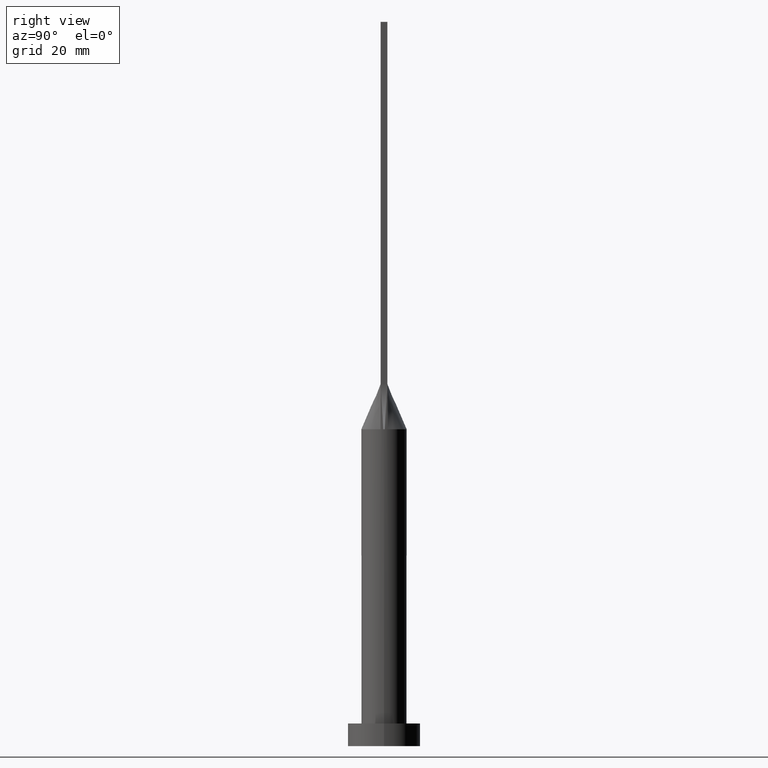
[diagram: clean part render]
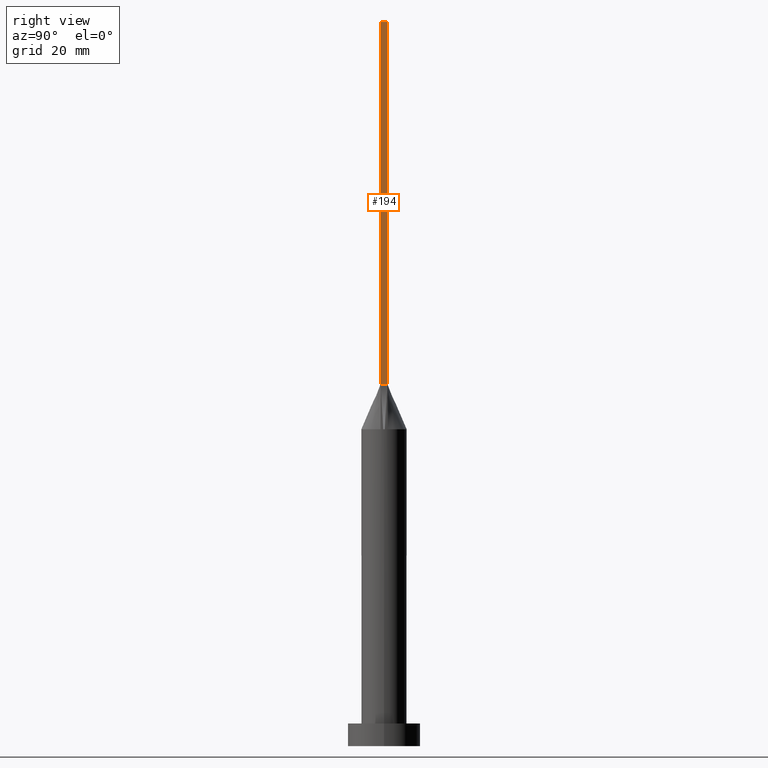
[diagram: same view with one face highlighted and labeled with its STEP entity id]
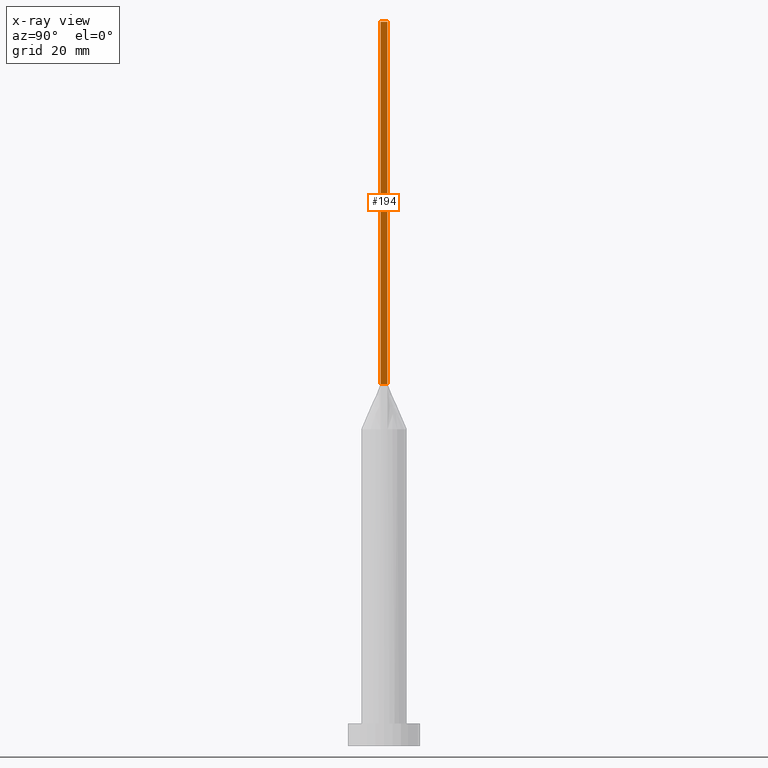
[diagram: x-ray of the same camera — body ghosted, the highlighted face saturated]
A machine part, right view. The second image highlights one B-rep face of the part: STEP entity #194.
The next image is the same camera in x-ray: the body ghosted, the highlighted face saturated — about 0% of this face is hidden behind the body in this view.
In plain terms, the highlighted planar face has unit normal (-1, 0, 0).
Its self-contained STEP definition (entity closure, byte-faithful):
#6 = AXIS2_PLACEMENT_3D ( 'NONE', #255, #21, #460 ) ;
#15 = VECTOR ( 'NONE', #495, 1000.000000000000000 ) ;
#21 = DIRECTION ( 'NONE',  ( -1.000000000000000000, 0.000000000000000000, 0.000000000000000000 ) ) ;
#24 = CARTESIAN_POINT ( 'NONE',  ( 4.750000000000000000, -0.7499999999999997780, 160.0000000000000000 ) ) ;
#39 = EDGE_CURVE ( 'NONE', #182, #115, #96, .T. ) ;
#45 = ORIENTED_EDGE ( 'NONE', *, *, #198, .F. ) ;
#61 = DIRECTION ( 'NONE',  ( 0.000000000000000000, 1.000000000000000000, 0.000000000000000000 ) ) ;
#72 = CARTESIAN_POINT ( 'NONE',  ( 4.750000000000000000, -0.7499999999999997780, 80.00000000000000000 ) ) ;
#96 = LINE ( 'NONE', #477, #117 ) ;
#110 = CARTESIAN_POINT ( 'NONE',  ( 4.750000000000000000, 0.7500000000000002220, 80.00000000000000000 ) ) ;
#115 = VERTEX_POINT ( 'NONE', #340 ) ;
#117 = VECTOR ( 'NONE', #242, 1000.000000000000000 ) ;
#124 = ORIENTED_EDGE ( 'NONE', *, *, #39, .F. ) ;
#140 = VECTOR ( 'NONE', #61, 1000.000000000000000 ) ;
#144 = VECTOR ( 'NONE', #592, 1000.000000000000000 ) ;
#156 = EDGE_CURVE ( 'NONE', #174, #115, #538, .T. ) ;
#174 = VERTEX_POINT ( 'NONE', #72 ) ;
#182 = VERTEX_POINT ( 'NONE', #222 ) ;
#194 = ADVANCED_FACE ( 'NONE', ( #211 ), #593, .F. ) ;
#198 = EDGE_CURVE ( 'NONE', #543, #182, #550, .T. ) ;
#211 = FACE_OUTER_BOUND ( 'NONE', #320, .T. ) ;
#222 = CARTESIAN_POINT ( 'NONE',  ( 4.750000000000000000, 0.7500000000000002220, 160.0000000000000000 ) ) ;
#242 = DIRECTION ( 'NONE',  ( -0.000000000000000000, -0.000000000000000000, -1.000000000000000000 ) ) ;
#255 = CARTESIAN_POINT ( 'NONE',  ( 4.750000000000000000, -0.7499999999999997780, 160.0000000000000000 ) ) ;
#305 = LINE ( 'NONE', #24, #144 ) ;
#320 = EDGE_LOOP ( 'NONE', ( #364, #124, #45, #469 ) ) ;
#340 = CARTESIAN_POINT ( 'NONE',  ( 4.750000000000000000, 0.7500000000000002220, 80.00000000000000000 ) ) ;
#364 = ORIENTED_EDGE ( 'NONE', *, *, #156, .T. ) ;
#460 = DIRECTION ( 'NONE',  ( 0.000000000000000000, 0.000000000000000000, 1.000000000000000000 ) ) ;
#469 = ORIENTED_EDGE ( 'NONE', *, *, #579, .T. ) ;
#477 = CARTESIAN_POINT ( 'NONE',  ( 4.750000000000000000, 0.7500000000000002220, 160.0000000000000000 ) ) ;
#495 = DIRECTION ( 'NONE',  ( -0.000000000000000000, 1.000000000000000000, -0.000000000000000000 ) ) ;
#537 = CARTESIAN_POINT ( 'NONE',  ( 4.750000000000000000, -0.7499999999999997780, 160.0000000000000000 ) ) ;
#538 = LINE ( 'NONE', #110, #15 ) ;
#543 = VERTEX_POINT ( 'NONE', #537 ) ;
#550 = LINE ( 'NONE', #556, #140 ) ;
#556 = CARTESIAN_POINT ( 'NONE',  ( 4.750000000000000000, -0.7499999999999997780, 160.0000000000000000 ) ) ;
#579 = EDGE_CURVE ( 'NONE', #543, #174, #305, .T. ) ;
#592 = DIRECTION ( 'NONE',  ( -0.000000000000000000, -0.000000000000000000, -1.000000000000000000 ) ) ;
#593 = PLANE ( 'NONE',  #6 ) ;